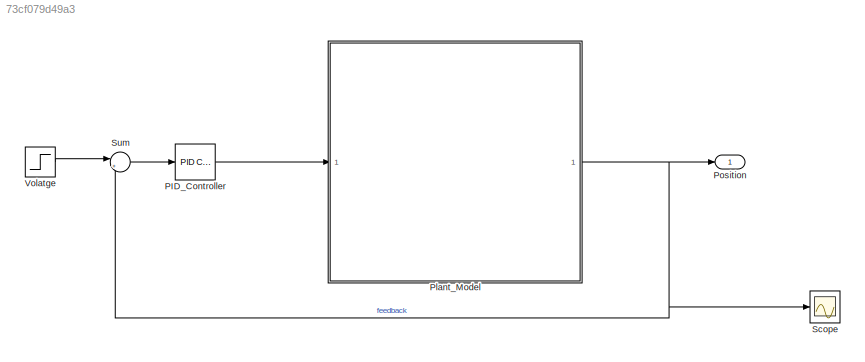
MODEL slx_73cf079d49a3
KIND model
CONFIG AbsTol = auto
CONFIG EnableMultiTasking = off
CONFIG FixedStep = auto
CONFIG MaxStep = auto
CONFIG MinStep = auto
CONFIG RelTol = 1e-3
CONFIG SampleTimeConstraint = Unconstrained
CONFIG SolverName = VariableStepAuto
CONFIG StartTime = 0.0
CONFIG StopTime = 10.0
BLOCK [Reference] PID_Controller  REF=slpidlib/PID Controller
  LibrarySourceBlock = simulink/Continuous/PID Controller
  SourceBlock = slpidlib/PID Controller
  SourceType = PID 1dof
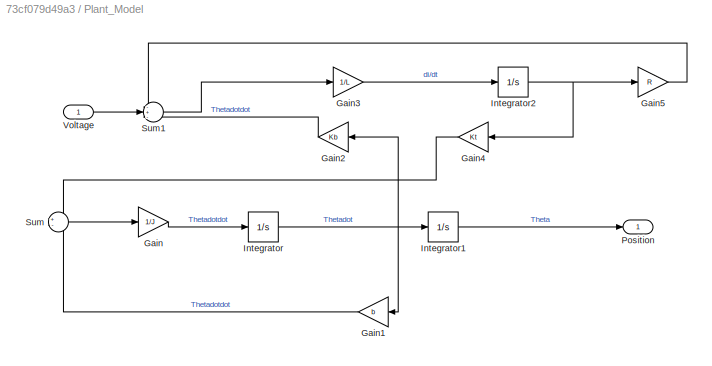
BLOCK [SubSystem] Plant_Model
BLOCK [Gain] Plant_Model/Gain
  Gain = 1/J
BLOCK [Gain] Plant_Model/Gain1
  Gain = b
BLOCK [Gain] Plant_Model/Gain2
  Gain = Kb
BLOCK [Gain] Plant_Model/Gain3
  Gain = 1/L
BLOCK [Gain] Plant_Model/Gain4
  Gain = Kt
BLOCK [Gain] Plant_Model/Gain5
  Gain = R
BLOCK [Integrator] Plant_Model/Integrator
BLOCK [Integrator] Plant_Model/Integrator1
BLOCK [Integrator] Plant_Model/Integrator2
BLOCK [Outport] Plant_Model/Position
BLOCK [Sum] Plant_Model/Sum
  Inputs = +-
BLOCK [Sum] Plant_Model/Sum1
  Inputs = -+-
BLOCK [Inport] Plant_Model/Voltage
BLOCK [Outport] Position
BLOCK [Scope] Scope
  Floating = off
  NumInputPorts = 1
  ScopeSpecificationString = Simulink.scopes.TimeScopeBlockCfg('CurrentConfiguration', extmgr.ConfigurationSet(extmgr.Configuration('Core','General UI',true),extmgr.Configuration('Core','Source UI',true),extmgr.Configuration('Sources','WiredSimulink',true),extmgr.Configuration('Visuals','Time Domain',true,'SerializedDisplays',{struct('MinYLimReal','-0.13757','MaxYLimReal','1.23809','YLabelReal','','MinYLimMag','0.00000','MaxY...<+1446ch>
BLOCK [Sum] Sum
  Inputs = |+-
BLOCK [Step] Volatge
  SampleTime = 0
LINE PID_Controller:1 -> Plant_Model:1
LINE Plant_Model/Gain1:1 -> Plant_Model/Sum:2
LINE Plant_Model/Gain2:1 -> Plant_Model/Sum1:3
LINE Plant_Model/Gain3:1 -> Plant_Model/Integrator2:1
LINE Plant_Model/Gain4:1 -> Plant_Model/Sum:1
LINE Plant_Model/Gain5:1 -> Plant_Model/Sum1:1
LINE Plant_Model/Gain:1 -> Plant_Model/Integrator:1
LINE Plant_Model/Integrator1:1 -> Plant_Model/Position:1
NET Plant_Model/Integrator2:1 -> Plant_Model/Gain4:1, Plant_Model/Gain5:1
NET Plant_Model/Integrator:1 -> Plant_Model/Gain1:1, Plant_Model/Gain2:1, Plant_Model/Integrator1:1
LINE Plant_Model/Sum1:1 -> Plant_Model/Gain3:1
LINE Plant_Model/Sum:1 -> Plant_Model/Gain:1
LINE Plant_Model/Voltage:1 -> Plant_Model/Sum1:2
NET Plant_Model:1 -> Position:1, Scope:1, Sum:2
LINE Sum:1 -> PID_Controller:1
LINE Volatge:1 -> Sum:1
note: NET lines group one-source signal fan-out (src -> all destinations, sorted); 1:1 wires keep LINE
